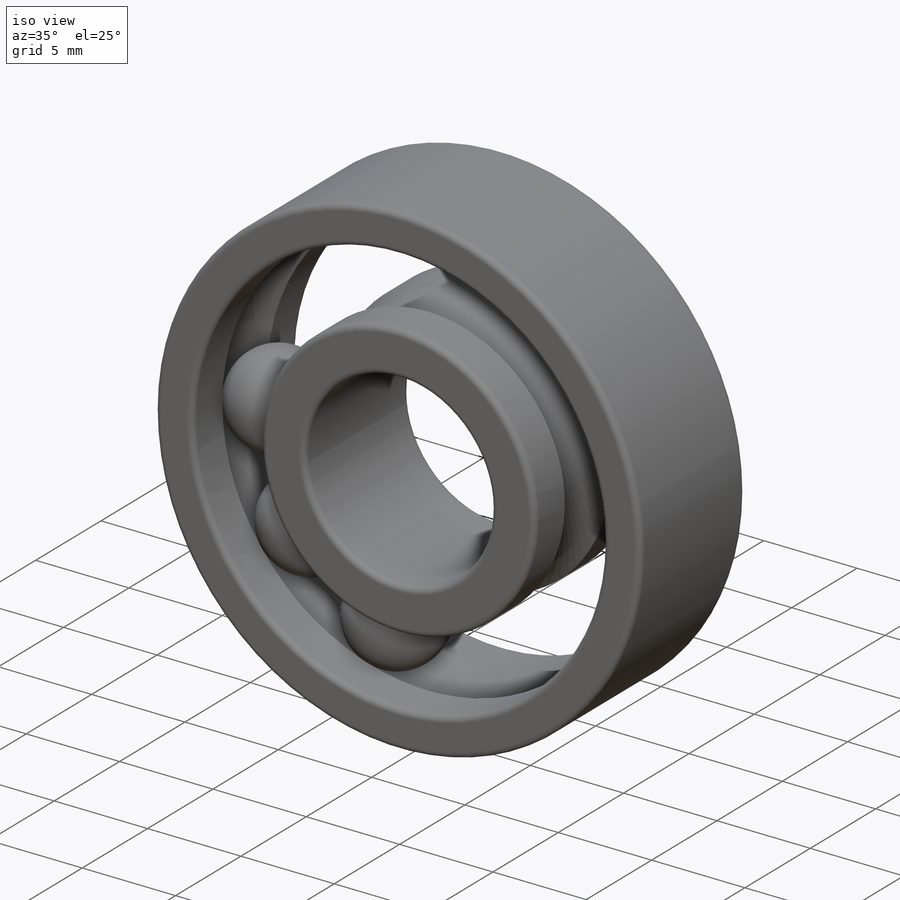
[diagram: iso view]
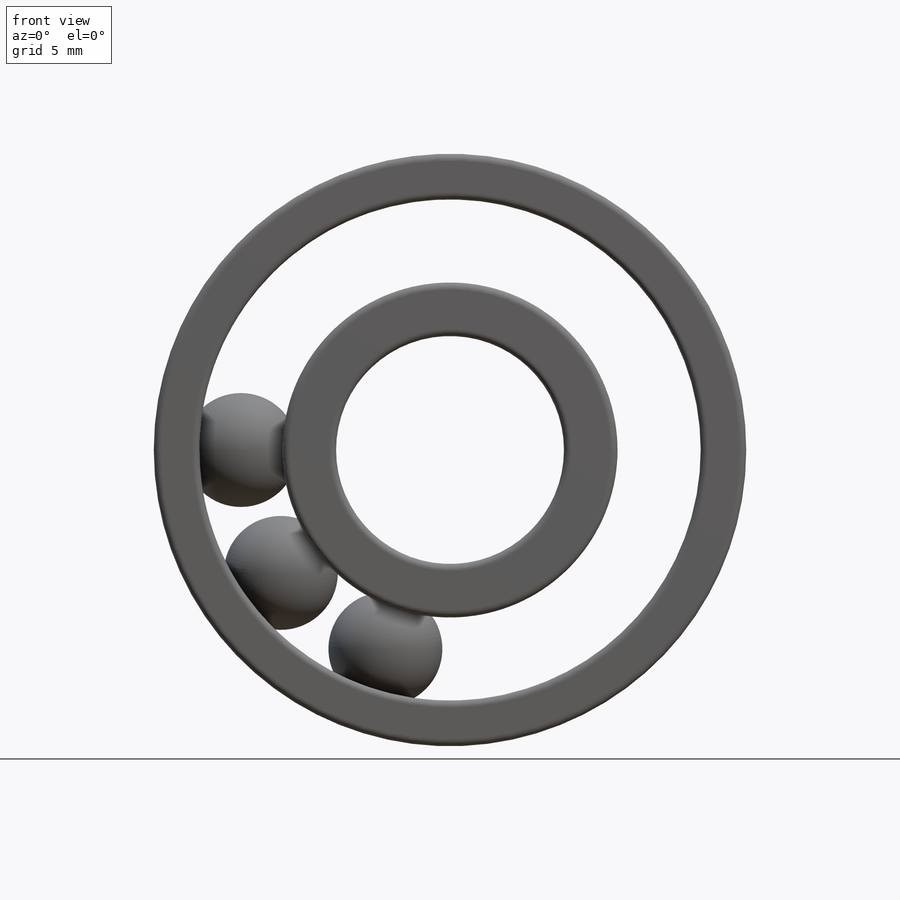
[diagram: front view]
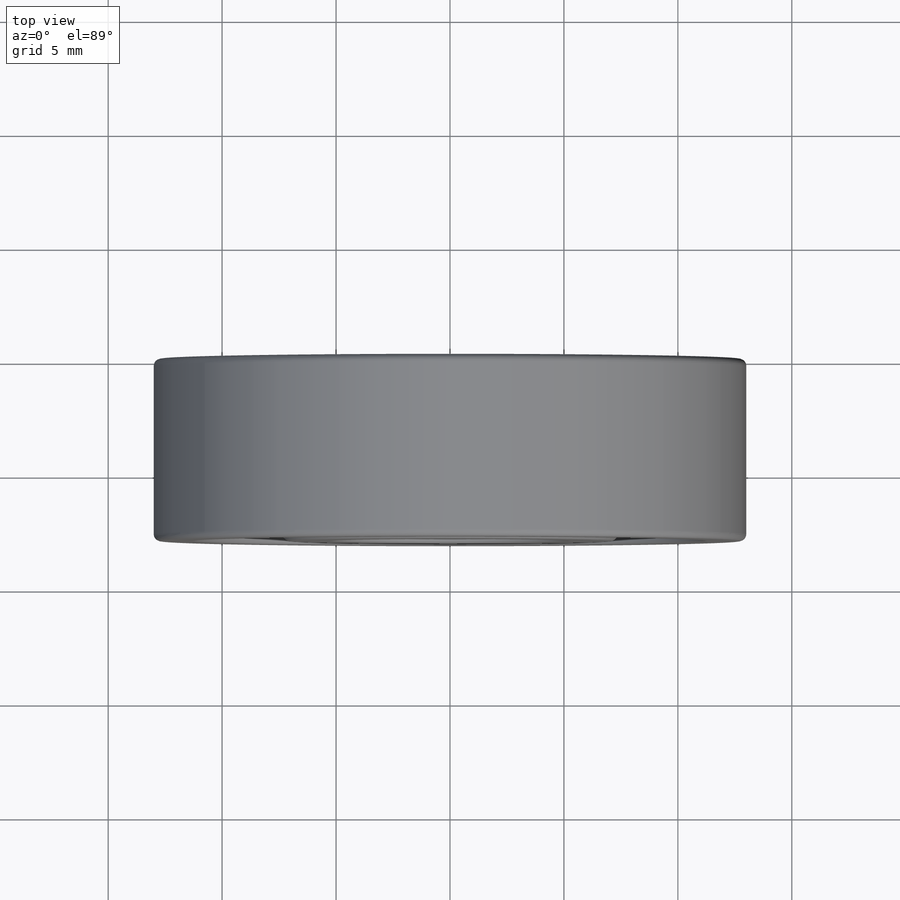
[diagram: top view]
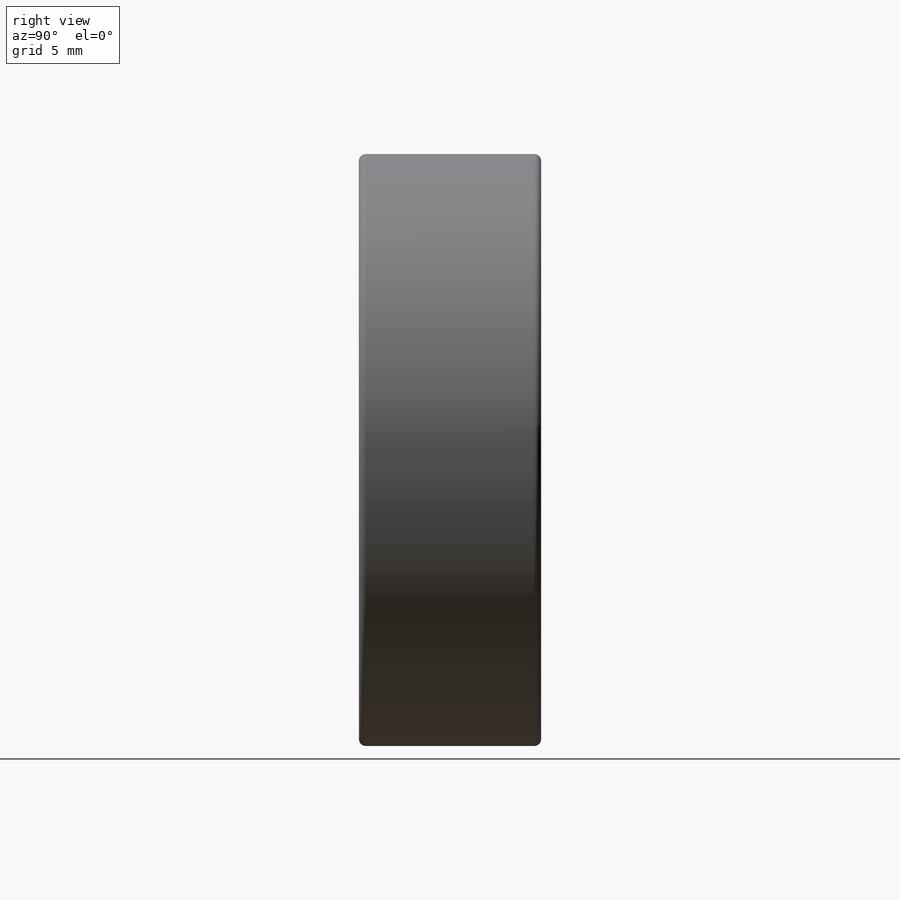
[diagram: right view]
SOLIDWORKS PART (.sldprt)
format: sldprt  version: not decoded by parser v0  size: 884,736 bytes
history: native  units: mm
features: sketch x5, fillet x2, material x1, extrude x1, plane x1, sweep x1, revolve x1, pattern_circular x1 (+11 scaffold rows collapsed)
feature tree (24):
  scaffold x11  (default folders/planes/origin — collapsed)
  material  "Material <not specified>"
  sketch  "Sketch1"  dims[D1=26.0mm D2=10.0mm D3=14.7mm D4=22.0mm]
  extrude  "Boss-Extrude1"  Depth=8mm
  plane  "Middle Plane"
  sketch  "Sketch2"  dims[D1=18.35mm]
  sketch  "Sketch3"
  sketch  "Sketch4"  dims[D2=5.0mm D1=9.175mm]
  sweep  "Cut-Sweep1"
  sketch  "Sketch5"  dims[c1.D1=5.0mm c1.D3=2.5mm c2.D1=4.0mm c2.D4=2.0mm c3.D1=2.5mm c3.D2=9.175mm]
  revolve  "Revolve1"  Angle=360deg
  pattern_circular  "CirPattern1"  Count=10 Angle=360deg
  fillet  "Fillet1"  Radius=0.3mm
  fillet  "Fillet2"  Radius=0.3mm
decode coverage: 9 of 11 modeling features carry decoded parameters
note: suppression state not decoded; provenance and decode notes live in map.json
